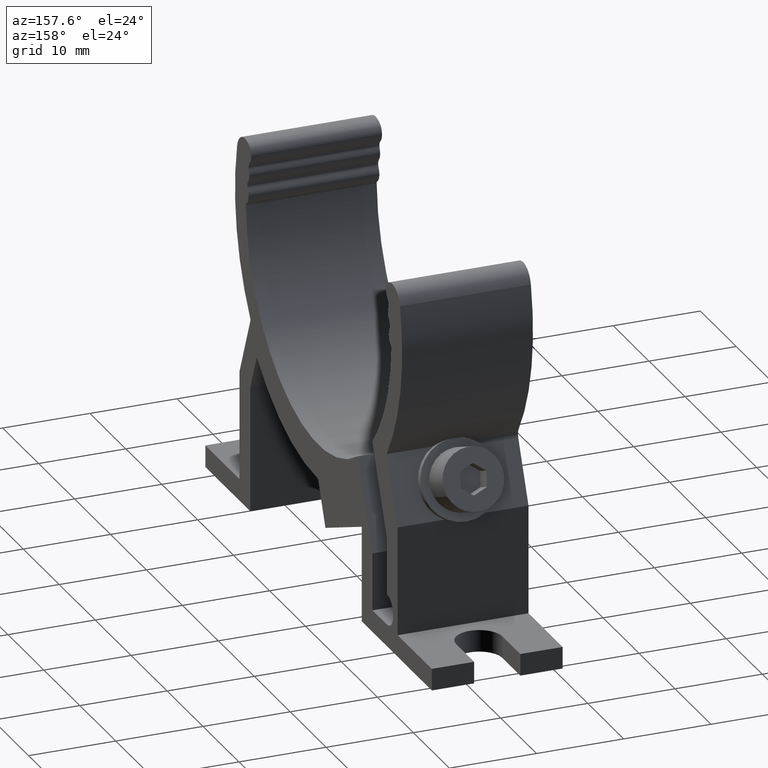
[diagram: clean part render]
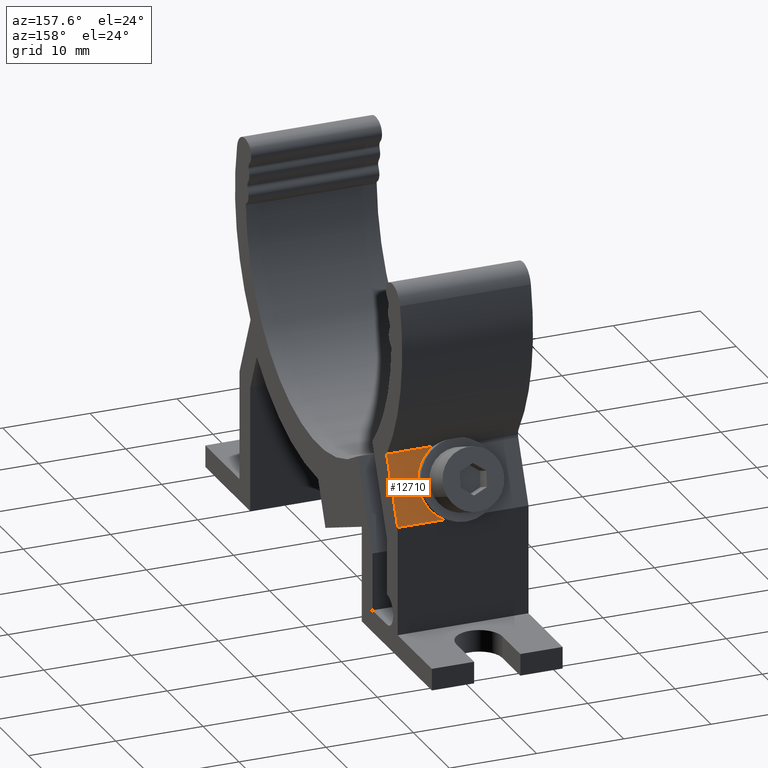
[diagram: same view with one face highlighted and labeled with its STEP entity id]
A machine part, auxiliary view. The second image highlights one B-rep face of the part: STEP entity #12710.
In plain terms, the highlighted planar face has unit normal (0, 0.9205, 0.3907).
Its self-contained STEP definition (entity closure, byte-faithful):
#8200=CARTESIAN_POINT('',(19.3938919825663,-14.6103942615366,
7.50000000000007));
#8210=VERTEX_POINT('',#8200);
#8240=CARTESIAN_POINT('',(13.1921475636507,0.,7.50000000000007));
#8250=DIRECTION('',(-0.390731128489274,0.92050485345244,0.));
#8260=VECTOR('',#8250,1.);
#8270=LINE('',#8240,#8260);
#8280=CARTESIAN_POINT('',(22.4688773541871,-21.8546058241429,
7.50000000000007));
#8290=VERTEX_POINT('',#8280);
#8300=EDGE_CURVE('',#8290,#8210,#8270,.T.);
#11980=CARTESIAN_POINT('',(19.3938919825663,-14.6103942615366,
2.20408724793442));
#11990=VERTEX_POINT('',#11980);
#12020=CARTESIAN_POINT('',(19.3938919825663,-14.6103942615366,
-7.49999999999993));
#12030=DIRECTION('',(0.,0.,1.));
#12040=VECTOR('',#12030,1.);
#12050=LINE('',#12020,#12040);
#12060=EDGE_CURVE('',#11990,#8210,#12050,.T.);
#12470=CARTESIAN_POINT('',(22.4688773541871,-21.8546058241429,
-7.49999999999993));
#12480=DIRECTION('',(0.92050485345244,0.390731128489274,-0.));
#12490=DIRECTION('',(-0.390731128489274,0.92050485345244,0.));
#12500=AXIS2_PLACEMENT_3D('',#12470,#12480,#12490);
#12510=PLANE('',#12500);
#12520=CARTESIAN_POINT('',(22.4688773541871,-21.8546058241429,0.));
#12530=DIRECTION('',(0.,0.,-1.));
#12540=VECTOR('',#12530,1.);
#12550=LINE('',#12520,#12540);
#12560=CARTESIAN_POINT('',(22.4688773541871,-21.8546058241429,
2.16209619038084));
#12570=VERTEX_POINT('',#12560);
#12580=EDGE_CURVE('',#8290,#12570,#12550,.T.);
#12590=ORIENTED_EDGE('',*,*,#12580,.T.);
#12600=ORIENTED_EDGE('',*,*,#8300,.F.);
#12610=ORIENTED_EDGE('',*,*,#12060,.T.);
#12620=CARTESIAN_POINT('',(20.9268333023428,-18.2217776964011,
-7.2390496042579E-14));
#12630=DIRECTION('',(-0.92050485345244,-0.390731128489274,0.));
#12640=DIRECTION('',(0.,0.,-1.));
#12650=AXIS2_PLACEMENT_3D('',#12620,#12630,#12640);
#12660=CIRCLE('',#12650,4.5);
#12670=EDGE_CURVE('',#12570,#11990,#12660,.T.);
#12680=ORIENTED_EDGE('',*,*,#12670,.T.);
#12690=EDGE_LOOP('',(#12680,#12610,#12600,#12590));
#12700=FACE_OUTER_BOUND('',#12690,.T.);
#12710=ADVANCED_FACE('',(#12700),#12510,.T.);